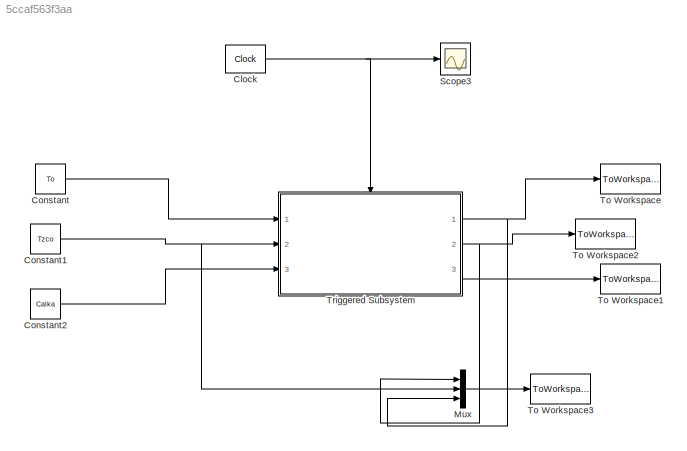
MODEL slx_5ccaf563f3aa
KIND model
BLOCK [Reference] Clock  REF=simulink_extras/Flip Flops/Clock
  Ports = [0, 1]
  SourceBlock = simulink_extras/Flip Flops/Clock
  SourceType = Digital clock
  period = 2
BLOCK [Constant] Constant
  Value = To
BLOCK [Constant] Constant1
  Value = Tzco
BLOCK [Constant] Constant2
  Value = Calka
BLOCK [Mux] Mux
  DisplayOption = bar
  Inputs = 3
  Ports = [3, 1]
BLOCK [Scope] Scope3
  DataFormat = StructureWithTime
  Floating = off
  NumInputPorts = 1
  Ports = [1]
  SampleTime = 0
  SaveName = ScopeData3
  ShowLegends = off
BLOCK [ToWorkspace] To Workspace
  MaxDataPoints = 1
  Ports = [1]
  SampleTime = -1
  VariableName = Fzm
BLOCK [ToWorkspace] To Workspace1
  MaxDataPoints = 1
  Ports = [1]
  SampleTime = -1
  VariableName = Calka
BLOCK [ToWorkspace] To Workspace2
  MaxDataPoints = 1
  Ports = [1]
  SampleTime = -1
  VariableName = Cos
BLOCK [ToWorkspace] To Workspace3
  Ports = [1]
  SampleTime = -1
  SaveFormat = Structure With Time
  VariableName = Dane
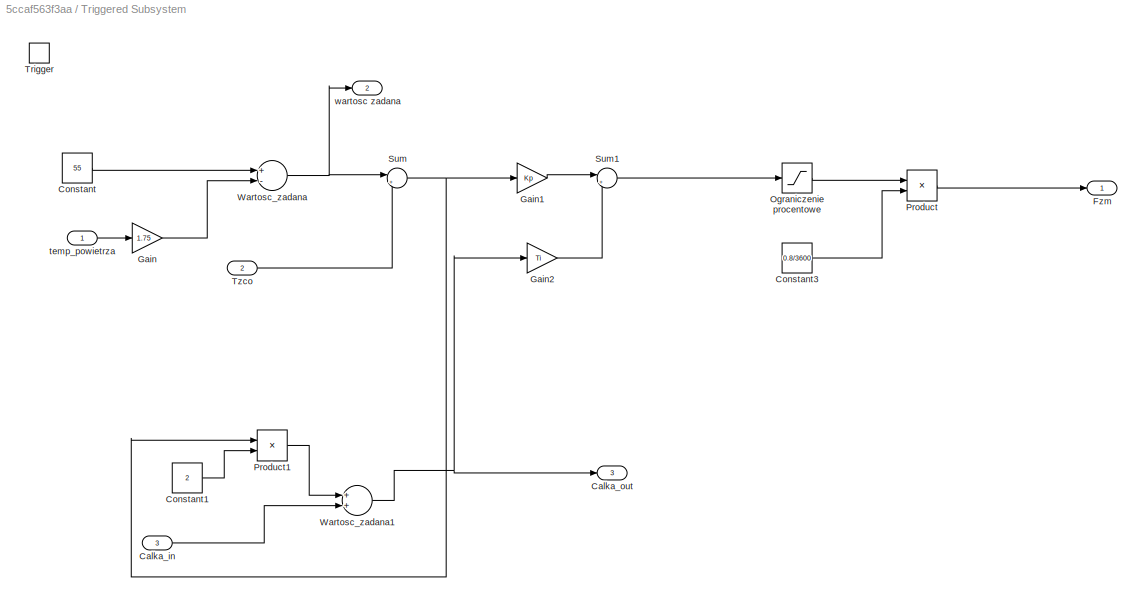
BLOCK [SubSystem] Triggered Subsystem
  FunctionWithSeparateData = off
  MaskHideContents = off
  MinAlgLoopOccurrences = off
  Opaque = off
  Ports = [3, 3, 0, 1]
  PropExecContextOutsideSubsystem = off
  RTWSystemCode = Auto
  RequestExecContextInheritance = off
  TreatAsAtomicUnit = on
BLOCK [Inport] Triggered Subsystem/Calka_in
  IconDisplay = Port number
  Port = 3
BLOCK [Outport] Triggered Subsystem/Calka_out
  IconDisplay = Port number
  Port = 3
BLOCK [Constant] Triggered Subsystem/Constant
  Value = 55
BLOCK [Constant] Triggered Subsystem/Constant1
  Value = 2
BLOCK [Constant] Triggered Subsystem/Constant3
  Value = 0.8/3600
BLOCK [Outport] Triggered Subsystem/Fzm
  IconDisplay = Port number
BLOCK [Gain] Triggered Subsystem/Gain
  Gain = 1.75
  OutDataTypeStr = Inherit: Inherit via internal rule
  ParamDataTypeStr = Inherit: Inherit via internal rule
  SaturateOnIntegerOverflow = off
BLOCK [Gain] Triggered Subsystem/Gain1
  Gain = Kp
  OutDataTypeStr = Inherit: Inherit via internal rule
  ParamDataTypeStr = Inherit: Inherit via internal rule
  SaturateOnIntegerOverflow = off
BLOCK [Gain] Triggered Subsystem/Gain2
  Gain = Ti
  OutDataTypeStr = Inherit: Inherit via internal rule
  ParamDataTypeStr = Inherit: Inherit via internal rule
  SaturateOnIntegerOverflow = off
BLOCK [Saturate] Triggered Subsystem/Ograniczenie procentowe
  InputPortMap = u0
  LowerLimit = 0
  Ports = [1, 1]
  UpperLimit = 100
BLOCK [Product] Triggered Subsystem/Product
  InputSameDT = off
  OutDataTypeStr = Inherit: Inherit via internal rule
  Ports = [2, 1]
  RndMeth = Floor
  SaturateOnIntegerOverflow = off
BLOCK [Product] Triggered Subsystem/Product1
  InputSameDT = off
  OutDataTypeStr = Inherit: Inherit via internal rule
  Ports = [2, 1]
  RndMeth = Floor
  SaturateOnIntegerOverflow = off
BLOCK [Sum] Triggered Subsystem/Sum
  IconShape = round
  InputSameDT = off
  Inputs = |+-
  OutDataTypeStr = Inherit: Inherit via internal rule
  Ports = [2, 1]
  SaturateOnIntegerOverflow = off
BLOCK [Sum] Triggered Subsystem/Sum1
  IconShape = round
  InputSameDT = off
  Inputs = |++
  OutDataTypeStr = Inherit: Inherit via internal rule
  Ports = [2, 1]
  SaturateOnIntegerOverflow = off
BLOCK [TriggerPort] Triggered Subsystem/Trigger
  PortDimensions = 1
  Ports = []
  StatesWhenEnabling = held
BLOCK [Inport] Triggered Subsystem/Tzco
  IconDisplay = Port number
  Port = 2
BLOCK [Sum] Triggered Subsystem/Wartosc_zadana
  InputSameDT = off
  Inputs = +-
  OutDataTypeStr = Inherit: Inherit via internal rule
  Ports = [2, 1]
  SaturateOnIntegerOverflow = off
BLOCK [Sum] Triggered Subsystem/Wartosc_zadana1
  InputSameDT = off
  OutDataTypeStr = Inherit: Inherit via internal rule
  Ports = [2, 1]
  SaturateOnIntegerOverflow = off
BLOCK [Inport] Triggered Subsystem/temp_powietrza
  IconDisplay = Port number
BLOCK [Outport] Triggered Subsystem/wartosc zadana
  IconDisplay = Port number
  Port = 2
NET Clock:1 -> Scope3:1, Triggered Subsystem:trigger
NET Constant1:1 -> Mux:2, Triggered Subsystem:2
LINE Constant2:1 -> Triggered Subsystem:3
LINE Constant:1 -> Triggered Subsystem:1
LINE Mux:1 -> To Workspace3:1
LINE Triggered Subsystem/Calka_in:1 -> Triggered Subsystem/Wartosc_zadana1:2
LINE Triggered Subsystem/Constant1:1 -> Triggered Subsystem/Product1:2
LINE Triggered Subsystem/Constant3:1 -> Triggered Subsystem/Product:2
LINE Triggered Subsystem/Constant:1 -> Triggered Subsystem/Wartosc_zadana:1
LINE Triggered Subsystem/Gain1:1 -> Triggered Subsystem/Sum1:1
LINE Triggered Subsystem/Gain2:1 -> Triggered Subsystem/Sum1:2
LINE Triggered Subsystem/Gain:1 -> Triggered Subsystem/Wartosc_zadana:2
LINE Triggered Subsystem/Ograniczenie procentowe:1 -> Triggered Subsystem/Product:1
LINE Triggered Subsystem/Product1:1 -> Triggered Subsystem/Wartosc_zadana1:1
LINE Triggered Subsystem/Product:1 -> Triggered Subsystem/Fzm:1
LINE Triggered Subsystem/Sum1:1 -> Triggered Subsystem/Ograniczenie procentowe:1
NET Triggered Subsystem/Sum:1 -> Triggered Subsystem/Gain1:1, Triggered Subsystem/Product1:1
LINE Triggered Subsystem/Tzco:1 -> Triggered Subsystem/Sum:2
NET Triggered Subsystem/Wartosc_zadana1:1 -> Triggered Subsystem/Calka_out:1, Triggered Subsystem/Gain2:1
NET Triggered Subsystem/Wartosc_zadana:1 -> Triggered Subsystem/Sum:1, Triggered Subsystem/wartosc zadana:1
LINE Triggered Subsystem/temp_powietrza:1 -> Triggered Subsystem/Gain:1
NET Triggered Subsystem:1 -> Mux:3, To Workspace:1
NET Triggered Subsystem:2 -> Mux:1, To Workspace2:1
LINE Triggered Subsystem:3 -> To Workspace1:1
note: NET lines group one-source signal fan-out (src -> all destinations, sorted); 1:1 wires keep LINE
